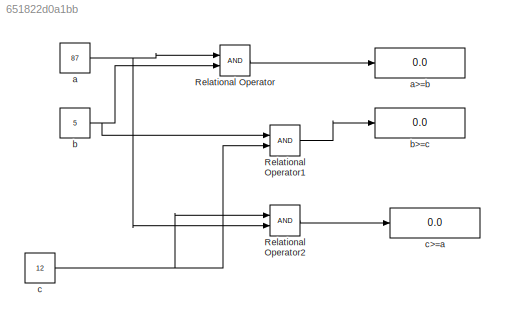
MODEL slx_651822d0a1bb
KIND model
CONFIG AbsTol = auto
CONFIG FixedStep = auto
CONFIG MaxStep = auto
CONFIG MinStep = auto
CONFIG RelTol = 1e-3
CONFIG SampleTimeConstraint = Unconstrained
CONFIG Solver = VariableStepAuto
CONFIG SolverMode = Auto
CONFIG SolverName = VariableStepAuto
CONFIG StartTime = 0.0
CONFIG StopTime = 10.0
BLOCK [RelationalOperator] Relational Operator
  InputSameDT = off
  OutDataTypeStr = boolean
  Ports = [2, 1]
BLOCK [RelationalOperator] Relational Operator1
  InputSameDT = off
  OutDataTypeStr = boolean
  Ports = [2, 1]
BLOCK [RelationalOperator] Relational Operator2
  InputSameDT = off
  OutDataTypeStr = boolean
  Ports = [2, 1]
BLOCK [Constant] a
  Value = 87
BLOCK [Display] a>=b
  Decimation = 1
  Ports = [1]
BLOCK [Constant] b
  Value = 5
BLOCK [Display] b>=c
  Decimation = 1
  Ports = [1]
BLOCK [Constant] c
  Value = 12
BLOCK [Display] c>=a
  Decimation = 1
  Ports = [1]
LINE Relational Operator1:1 -> b>=c:1
LINE Relational Operator2:1 -> c>=a:1
LINE Relational Operator:1 -> a>=b:1
NET a:1 -> Relational Operator2:2, Relational Operator:1
NET b:1 -> Relational Operator1:1, Relational Operator:2
NET c:1 -> Relational Operator1:2, Relational Operator2:1
note: NET lines group one-source signal fan-out (src -> all destinations, sorted); 1:1 wires keep LINE
